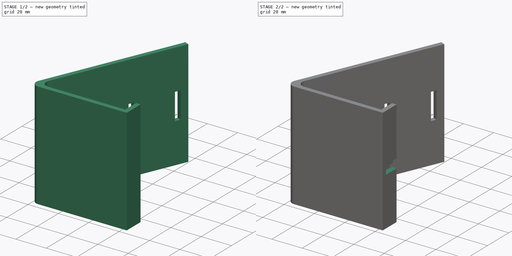
[diagram: build sequence overview — one tinted view per stage of 2, left to right]
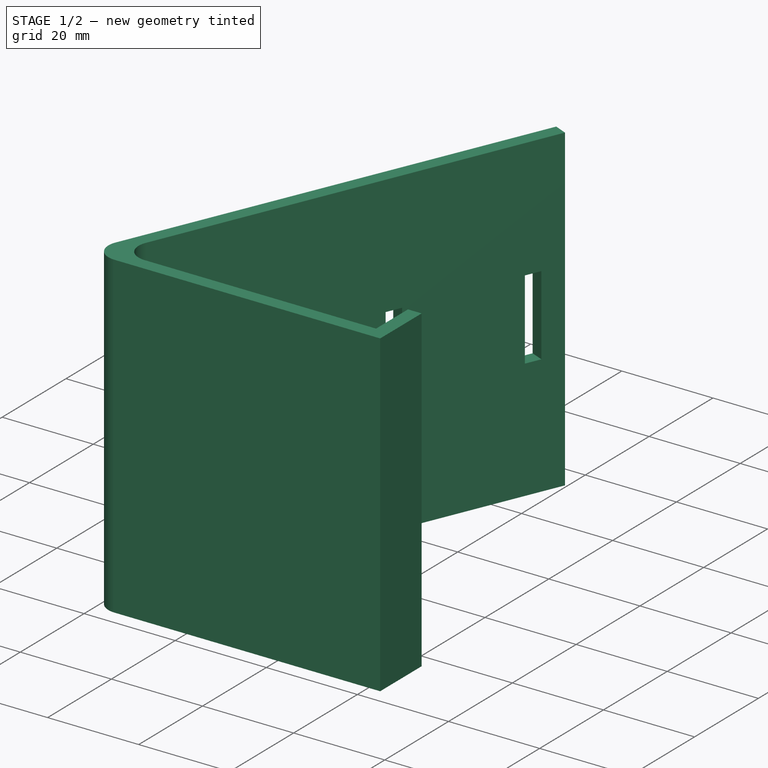
[diagram: stage 1 of 2 — iso view after this stage's code; geometry added in this stage tinted green]
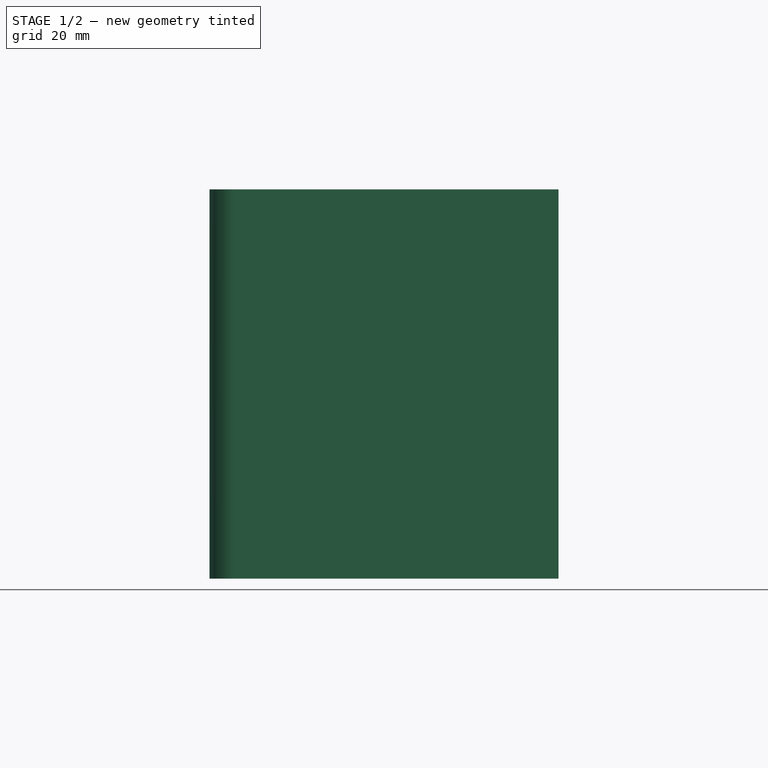
[diagram: stage 1 of 2 — front view after this stage's code; geometry added in this stage tinted green]
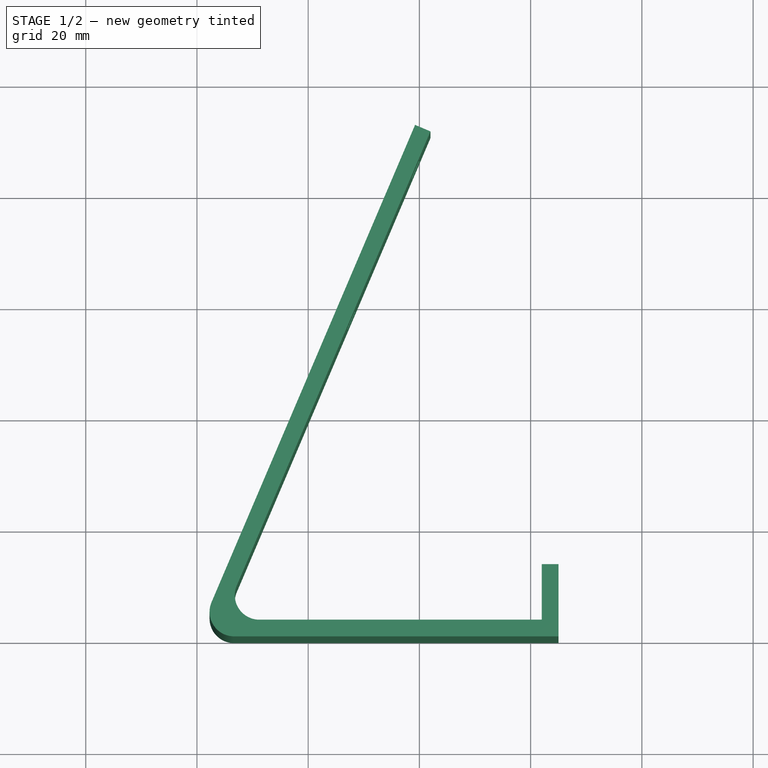
[diagram: stage 1 of 2 — top view after this stage's code; geometry added in this stage tinted green]
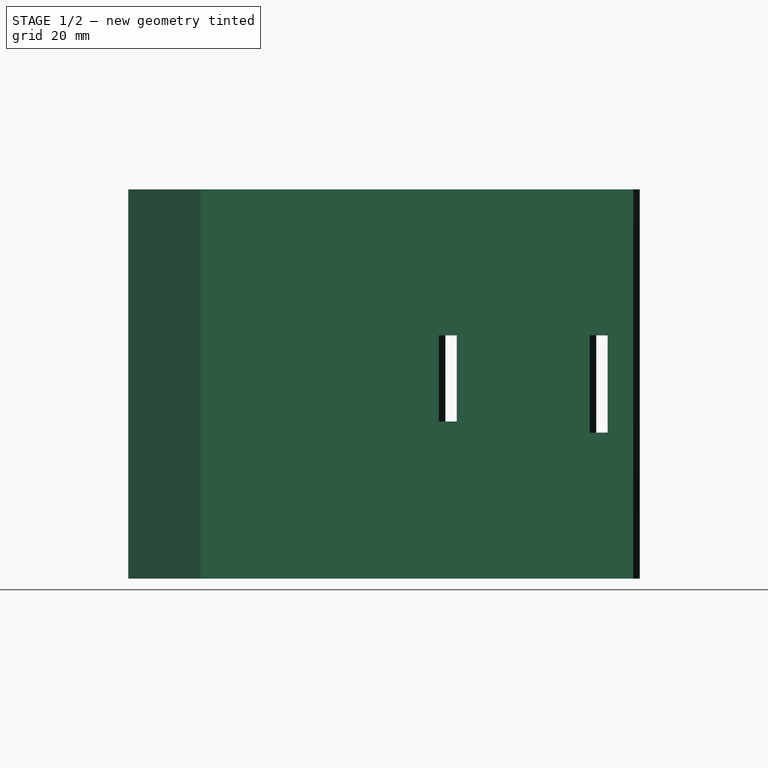
[diagram: stage 1 of 2 — right view after this stage's code; geometry added in this stage tinted green]
FCSTD DOCUMENT  (FreeCAD 1.0R39109 (Git))
Label: TD-M5037A-SM
License: All rights reserved
LicenseURL: http://en.wikipedia.org/wiki/All_rights_reserved
objects: Sketcher::SketchObject×3, PartDesign::Pocket×2, PartDesign::Pad×1, PartDesign::Body×1
note: 16 computed .brp shape members not serialized (recipe doc carries the construction recipe); baked Part::Feature solids carry a one-line shape summary decoded from their .brp

FEATURE [Sketcher::SketchObject] Sketch  label="Main Volume Sketch"
  ArcFitTolerance = 1e-06
  AttachmentSupport = -> [XY_Plane]
  FullyConstrained = true
  MakeInternals = false
  MapMode = 5
  sketch-geometry (13):
    g0: LineSegment StartX=6.67472 StartY=0 StartZ=0 EndX=65 EndY=0 EndZ=0
    g1: LineSegment StartX=2.61814 StartY=6.13981 StartZ=0 EndX=39.2247 EndY=91.986 EndZ=0
    g2: LineSegment StartX=65 StartY=0 StartZ=0 EndX=65 EndY=3 EndZ=0
    g3: LineSegment StartX=62 StartY=3 StartZ=0 EndX=11.2153 EndY=3 EndZ=0
    g4: LineSegment StartX=7.15876 StartY=9.13981 StartZ=0 EndX=41.9843 EndY=90.8093 EndZ=0
    g5: LineSegment StartX=41.9843 StartY=90.8093 StartZ=0 EndX=39.2247 EndY=91.986 EndZ=0
    g6: ArcOfCircle CenterX=6.67472 CenterY=4.41 CenterZ=0 NormalX=0 NormalY=0 NormalZ=1 AngleXU=0 Radius=4.41 StartAngle=2.73852 EndAngle=4.71239
    g7: GeomPoint [constr] X=0 Y=0 Z=0
    g8: ArcOfCircle CenterX=11.2153 CenterY=7.41 CenterZ=0 NormalX=0 NormalY=0 NormalZ=1 AngleXU=0 Radius=4.41 StartAngle=2.73852 EndAngle=4.71239
    g9: GeomPoint [constr] X=4.54063 Y=3 Z=0
    g10: LineSegment StartX=65 StartY=3 StartZ=0 EndX=65 EndY=13 EndZ=0
    g11: LineSegment StartX=65 StartY=13 StartZ=0 EndX=62 EndY=13 EndZ=0
    g12: LineSegment StartX=62 StartY=13 StartZ=0 EndX=62 EndY=3 EndZ=0
  constraints (34):
    c: Coincident(g7,g-1)
    c: PointOnObject(g0,g-1)
    c: DistanceX(g7,g0) = 65
    c: Distance(g1,g7) = 100
    c: Coincident(g2,g0)
    c: Vertical(g2)
    c: Horizontal(g3)
    c: Coincident(g5,g4)
    c: Coincident(g5,g1)
    c: Parallel(g1,g4)
    c: Distance(g5) = 3
    c: DistanceY(g2,g2) = 3
    c: Angle(g1,g5) = 1.5708
    c: PointOnObject(g7,g0)
    c: PointOnObject(g7,g1)
    c: Tangent(g0,g6) = -1.5708
    c: Tangent(g1,g6) = 1.5708
    c: Distance(g7,g6) = 8
    c: PointOnObject(g9,g3)
    c: PointOnObject(g9,g4)
    c: Tangent(g3,g8) = 1.5708
    c: Tangent(g4,g8) = 1.5708
    c: Distance(g9,g8) = 8
    c: Coincident(g10,g2)
    c: Vertical(g10)
    c: Coincident(g11,g10)
    c: Horizontal(g11)
    c: Coincident(g12,g11)
    c: Vertical(g12)
    c: DistanceX(g11,g11) = 3
    c: DistanceY(g10,g10) = 10
    c: Coincident(g3,g12)
    c: DistanceY(g0,g3) = 3
    c: Radius(g8) = 4.41
FEATURE [PartDesign::Pad] Pad  label="Main Volume"
  Direction = (0,0,1)
  Length = 70
  Length2 = 10
  Profile = -> Sketch
  ReferenceAxis = -> Sketch [N_Axis]
  Suppressed = false
  Type = 0
FEATURE [Sketcher::SketchObject] Sketch001  label="Pin Header Slots Sketch"
  ArcFitTolerance = 1e-06
  AttachmentSupport = -> [Pad]
  ExternalGeometry = -> [Pad]
  FullyConstrained = true
  MakeInternals = false
  MapMode = 5
  Placement = pos=(2.75958,-1.17674,0) rot=(0.730676,0.482759,0.482759;1.87956rad)
  sketch-geometry (10):
    g0: LineSegment StartX=91.5 StartY=43.75 StartZ=0 EndX=91.5 EndY=26.25 EndZ=0
    g1: LineSegment StartX=91.5 StartY=26.25 StartZ=0 EndX=95 EndY=26.25 EndZ=0
    g2: LineSegment StartX=95 StartY=26.25 StartZ=0 EndX=95 EndY=43.75 EndZ=0
    g3: LineSegment StartX=95 StartY=43.75 StartZ=0 EndX=91.5 EndY=43.75 EndZ=0
    g4: LineSegment [constr] StartX=95 StartY=43.75 StartZ=0 EndX=100 EndY=70 EndZ=0
    g5: LineSegment [constr] StartX=95 StartY=26.25 StartZ=0 EndX=100 EndY=0 EndZ=0
    g6: LineSegment StartX=62 StartY=43.75 StartZ=0 EndX=62 EndY=28.25 EndZ=0
    g7: LineSegment StartX=62 StartY=28.25 StartZ=0 EndX=65.5 EndY=28.25 EndZ=0
    g8: LineSegment StartX=65.5 StartY=28.25 StartZ=0 EndX=65.5 EndY=43.75 EndZ=0
    g9: LineSegment StartX=65.5 StartY=43.75 StartZ=0 EndX=62 EndY=43.75 EndZ=0
  constraints (28):
    c: Coincident(g0,g1)
    c: Coincident(g1,g2)
    c: Coincident(g2,g3)
    c: Coincident(g3,g0)
    c: Vertical(g0)
    c: Vertical(g2)
    c: Horizontal(g1)
    c: Horizontal(g3)
    c: DistanceY(g2,g2) = 17.5
    c: DistanceX(g3,g3) = 3.5
    c: Coincident(g4,g2)
    c: Coincident(g4,g-3)
    c: Coincident(g5,g1)
    c: Coincident(g5,g-4)
    c: Equal(g4,g5)
    c: DistanceX(g4,g4) = 5
    c: Coincident(g6,g7)
    c: Coincident(g7,g8)
    c: Coincident(g8,g9)
    c: Coincident(g9,g6)
    c: Vertical(g6)
    c: Vertical(g8)
    c: Horizontal(g7)
    c: Horizontal(g9)
    c: DistanceY(g8,g0) = 0
    c: DistanceY(g6,g6) = 15.5
    c: DistanceX(g9,g9) = 3.5
    c: DistanceX(g7,g0) = 26
FEATURE [PartDesign::Pocket] Pocket  label="Pin Header Slots"
  BaseFeature = -> Pad
  Direction = (-0.91986,0.392247,0)
  Length = 5
  Length2 = 5
  Profile = -> Sketch001
  ReferenceAxis = -> Sketch001 [N_Axis]
  Suppressed = false
  Type = 1
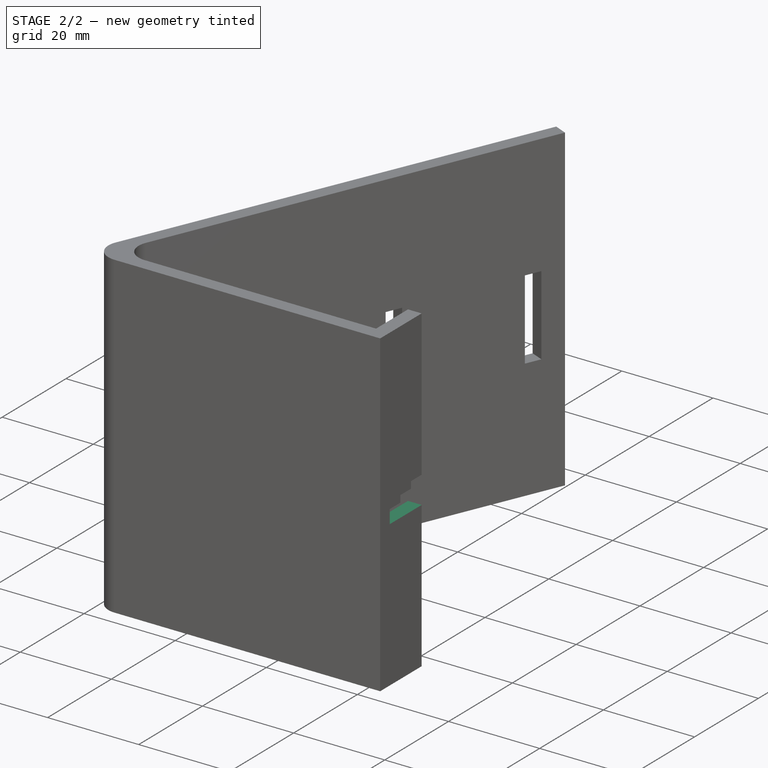
[diagram: stage 2 of 2 — iso view after this stage's code; geometry added in this stage tinted green]
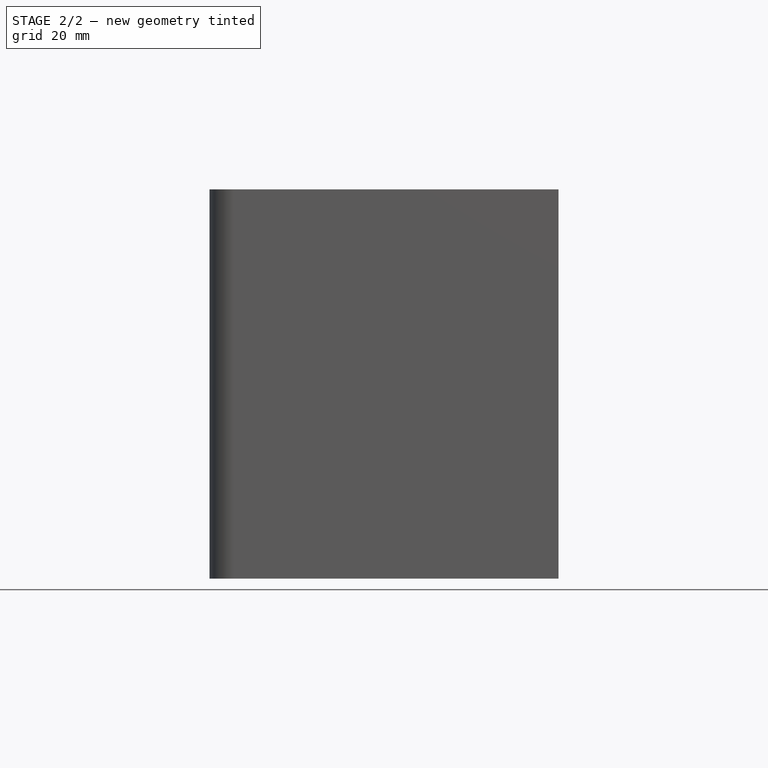
[diagram: stage 2 of 2 — front view after this stage's code; geometry added in this stage tinted green]
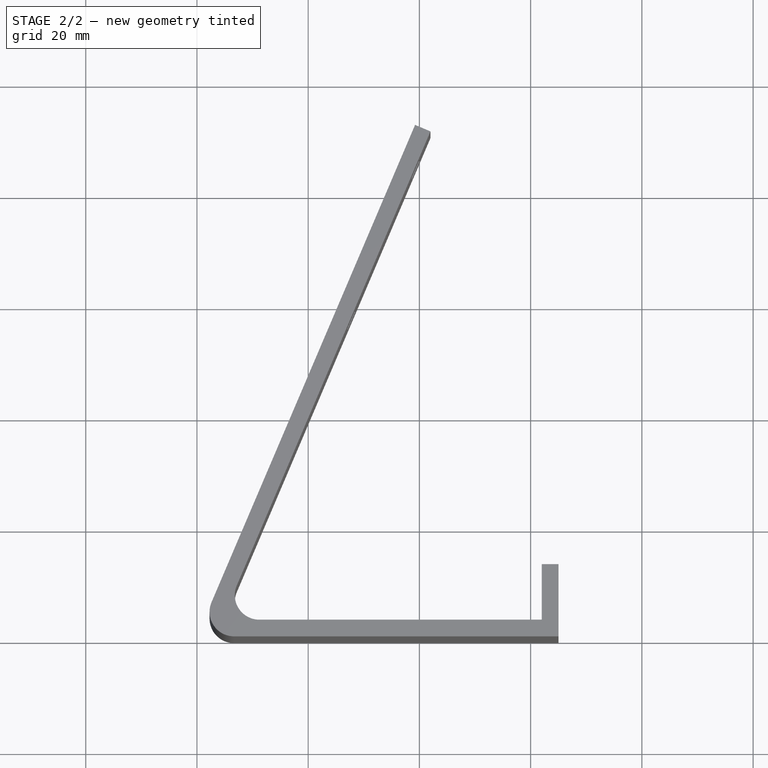
[diagram: stage 2 of 2 — top view after this stage's code; geometry added in this stage tinted green]
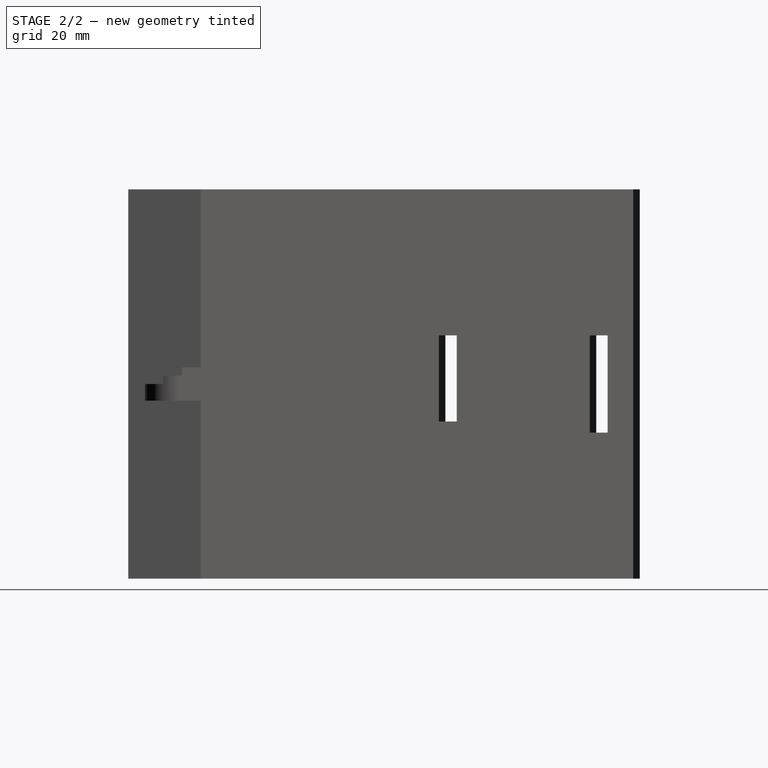
[diagram: stage 2 of 2 — right view after this stage's code; geometry added in this stage tinted green]
FEATURE [Sketcher::SketchObject] Sketch002  label="Cable Slot Sketch"
  ArcFitTolerance = 1e-06
  AttachmentSupport = -> [Pocket]
  FullyConstrained = true
  MakeInternals = false
  MapMode = 5
  Placement = pos=(65,0,0) rot=(0.57735,0.57735,0.57735;2.0944rad)
  sketch-geometry (10):
    g0: LineSegment StartX=3 StartY=35 StartZ=0 EndX=3 EndY=32 EndZ=0
    g1: LineSegment StartX=3 StartY=32 StartZ=0 EndX=13 EndY=32 EndZ=0
    g2: LineSegment [constr] StartX=13 StartY=38 StartZ=0 EndX=13 EndY=70 EndZ=0
    g3: LineSegment [constr] StartX=13 StartY=32 StartZ=0 EndX=13 EndY=0 EndZ=0
    g4: LineSegment StartX=3 StartY=35 StartZ=0 EndX=6.33333 EndY=35 EndZ=0
    g5: LineSegment StartX=6.33333 StartY=35 StartZ=0 EndX=6.33333 EndY=36.5 EndZ=0
    g6: LineSegment StartX=6.33333 StartY=36.5 StartZ=0 EndX=9.66667 EndY=36.5 EndZ=0
    g7: LineSegment StartX=9.66667 StartY=36.5 StartZ=0 EndX=9.66667 EndY=38 EndZ=0
    g8: LineSegment StartX=9.66667 StartY=38 StartZ=0 EndX=13 EndY=38 EndZ=0
    g9: LineSegment StartX=13 StartY=32 StartZ=0 EndX=13 EndY=38 EndZ=0
  constraints (28):
    c: Coincident(g0,g1)
    c: Vertical(g0)
    c: Horizontal(g1)
    c: Coincident(g2,g-3)
    c: Coincident(g3,g-3)
    c: Equal(g3,g2)
    c: DistanceX(g1,g1) = 10
    c: Coincident(g4,g0)
    c: Horizontal(g4)
    c: Coincident(g5,g4)
    c: Vertical(g5)
    c: Coincident(g6,g5)
    c: Horizontal(g6)
    c: Coincident(g8,g7)
    c: Horizontal(g8)
    c: Vertical(g7)
    c: Coincident(g6,g7)
    c: Coincident(g2,g8)
    c: Coincident(g1,g3)
    c: Equal(g8,g6)
    c: Equal(g6,g4)
    c: DistanceY(g0,g4) = 3
    c: DistanceY(g5,g5) = 1.5
    c: DistanceY(g7,g7) = 1.5
    c: PointOnObject(g2,g-3)
    c: Coincident(g9,g1)
    c: Coincident(g9,g2)
    c: Vertical(g9)
FEATURE [PartDesign::Pocket] Pocket001  label="Cable Slot"
  BaseFeature = -> Pocket
  Direction = (-1,0,0)
  Length = 5
  Length2 = 5
  Profile = -> Sketch002
  ReferenceAxis = -> Sketch002 [N_Axis]
  Suppressed = false
  Type = 0
FEATURE [PartDesign::Body] Body
  AllowCompound = false
  Group = -> [Sketch,Pad,Sketch001,Pocket,Sketch002,Pocket001]
  Origin = -> Origin
  Tip = -> Pocket001
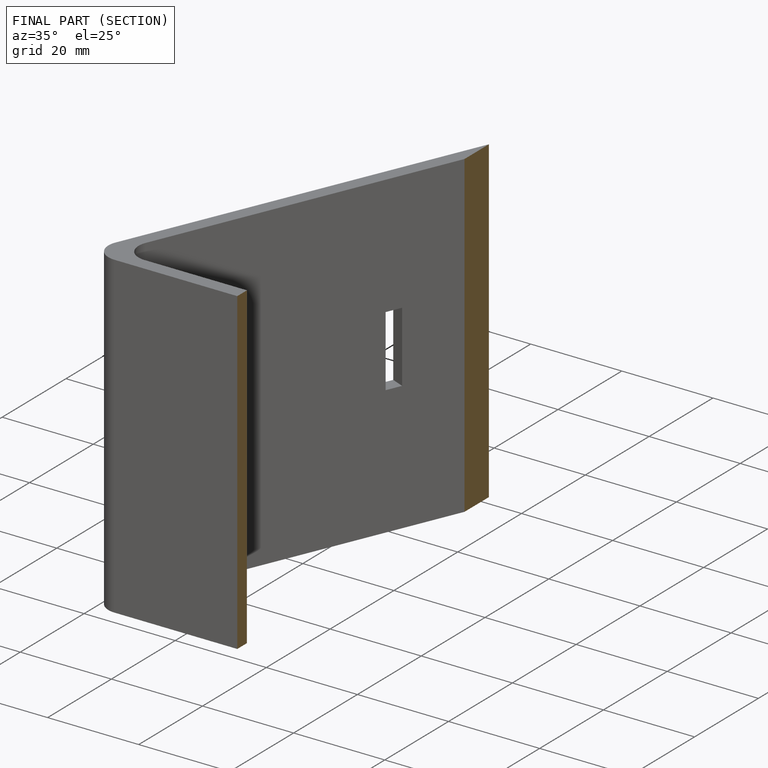
[diagram: finished part — half-section view (interior)]
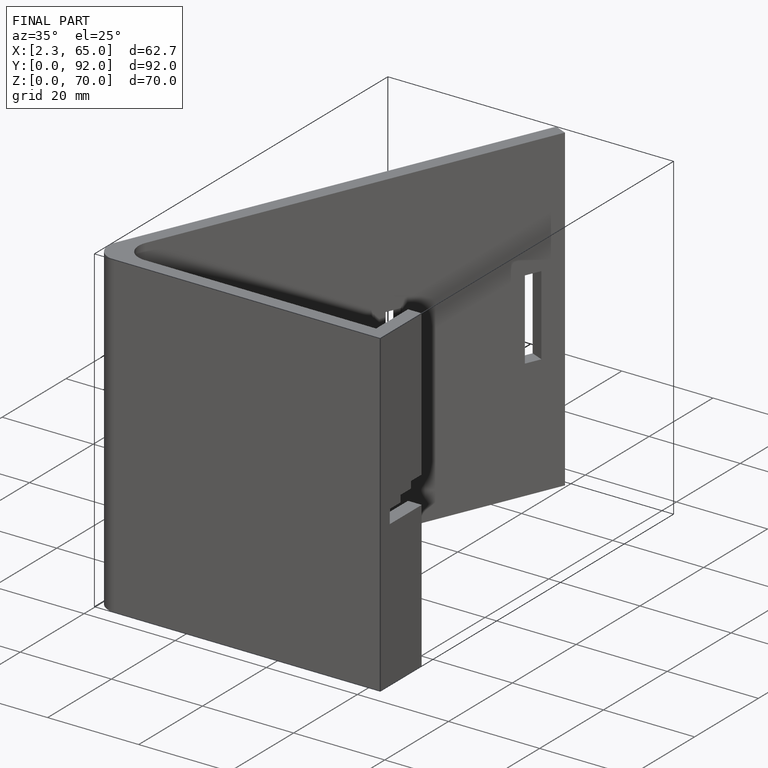
[diagram: finished part — iso view with bounding-box wireframe]
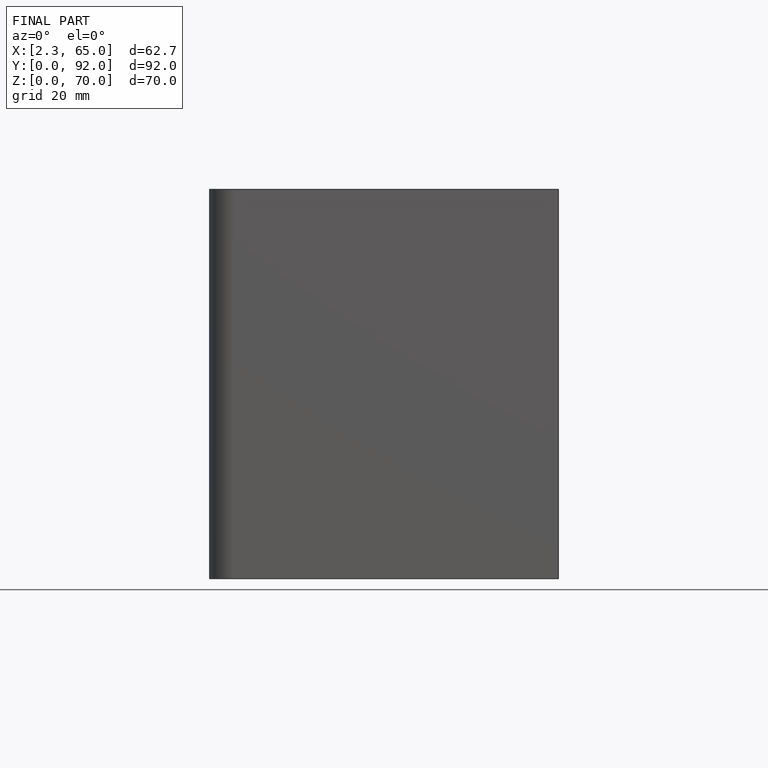
[diagram: finished part — front view with bounding-box wireframe]
